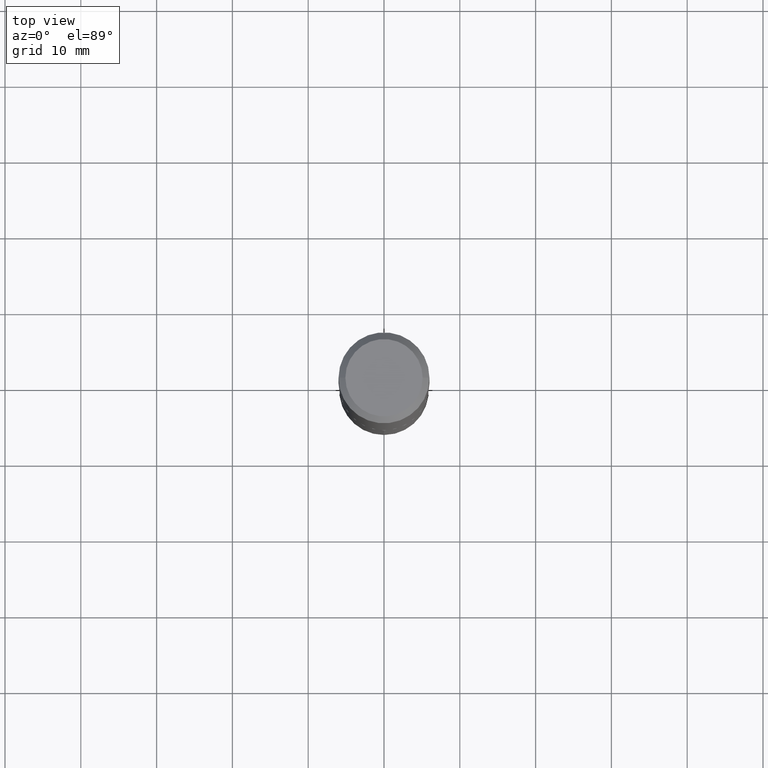
[diagram: clean part render]
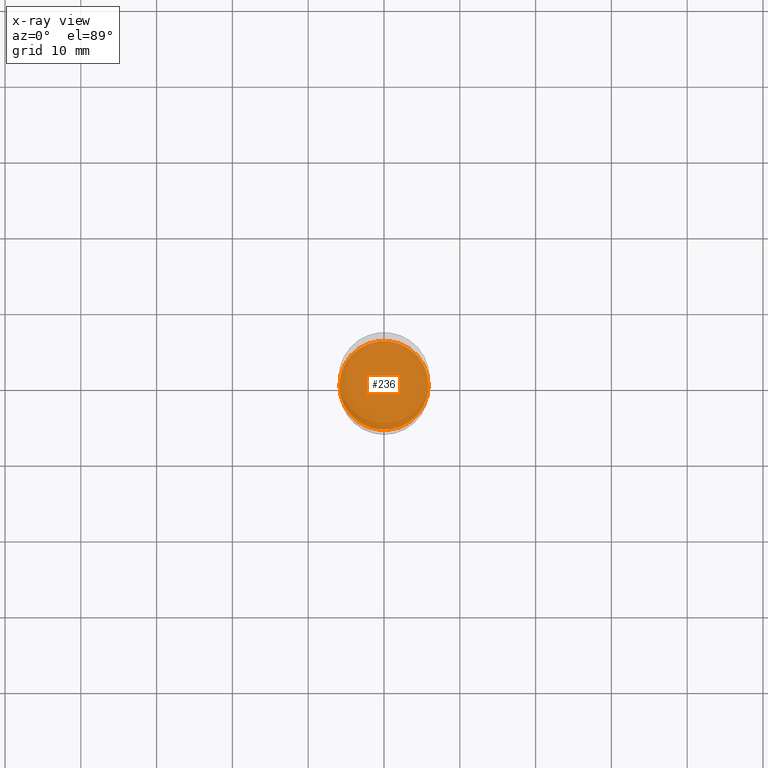
[diagram: x-ray — body ghosted, one internal face saturated and labeled with its STEP entity id]
A machine part, top view, then the same camera in x-ray: the body is ghosted and one INTERNAL B-rep face — a face not visible from any outside direction — is saturated and labeled: STEP entity #236.
In plain terms, the highlighted planar face has unit normal (-0, 0, 1).
Its self-contained STEP definition (entity closure, byte-faithful):
#25 = AXIS2_PLACEMENT_3D ( 'NONE', #124, #53, #414 ) ;
#26 = CARTESIAN_POINT ( 'NONE',  ( -0.2318000000000000060, -6.528060303172393642E-15, -2.342200000000000060 ) ) ;
#33 = CIRCLE ( 'NONE', #400, 0.2318000000000000060 ) ;
#53 = DIRECTION ( 'NONE',  ( -2.445468806185136597E-29, 3.491481338843145583E-15, 1.000000000000000000 ) ) ;
#92 = CIRCLE ( 'NONE', #25, 0.2318000000000000060 ) ;
#94 = DIRECTION ( 'NONE',  ( -2.438088387897960049E-29, 3.491481338843145188E-15, 1.000000000000000000 ) ) ;
#107 = EDGE_CURVE ( 'NONE', #172, #222, #92, .T. ) ;
#112 = EDGE_CURVE ( 'NONE', #222, #172, #33, .T. ) ;
#124 = CARTESIAN_POINT ( 'NONE',  ( 5.727777037846827784E-29, -8.177747591838416328E-15, -2.342200000000000060 ) ) ;
#134 = PLANE ( 'NONE',  #345 ) ;
#164 = ORIENTED_EDGE ( 'NONE', *, *, #112, .F. ) ;
#172 = VERTEX_POINT ( 'NONE', #26 ) ;
#212 = CARTESIAN_POINT ( 'NONE',  ( 5.727777037846827784E-29, -8.177747591838416328E-15, -2.342200000000000060 ) ) ;
#222 = VERTEX_POINT ( 'NONE', #403 ) ;
#236 = ADVANCED_FACE ( 'NONE', ( #385 ), #134, .F. ) ;
#250 = CARTESIAN_POINT ( 'NONE',  ( 5.727777037846827784E-29, -8.177747591838416328E-15, -2.342200000000000060 ) ) ;
#345 = AXIS2_PLACEMENT_3D ( 'NONE', #212, #94, #452 ) ;
#346 = DIRECTION ( 'NONE',  ( 1.000000000000000000, -6.982962677686264344E-15, 0.000000000000000000 ) ) ;
#353 = EDGE_LOOP ( 'NONE', ( #164, #464 ) ) ;
#385 = FACE_OUTER_BOUND ( 'NONE', #353, .T. ) ;
#400 = AXIS2_PLACEMENT_3D ( 'NONE', #250, #423, #346 ) ;
#403 = CARTESIAN_POINT ( 'NONE',  ( 0.2318000000000000060, -9.796398340526092813E-15, -2.342200000000000060 ) ) ;
#414 = DIRECTION ( 'NONE',  ( 1.000000000000000000, -6.982962677686264344E-15, 0.000000000000000000 ) ) ;
#423 = DIRECTION ( 'NONE',  ( -2.445468806185136597E-29, 3.491481338843145583E-15, 1.000000000000000000 ) ) ;
#452 = DIRECTION ( 'NONE',  ( 1.000000000000000000, -6.982962677686265922E-15, 4.876176775795935793E-29 ) ) ;
#464 = ORIENTED_EDGE ( 'NONE', *, *, #107, .F. ) ;